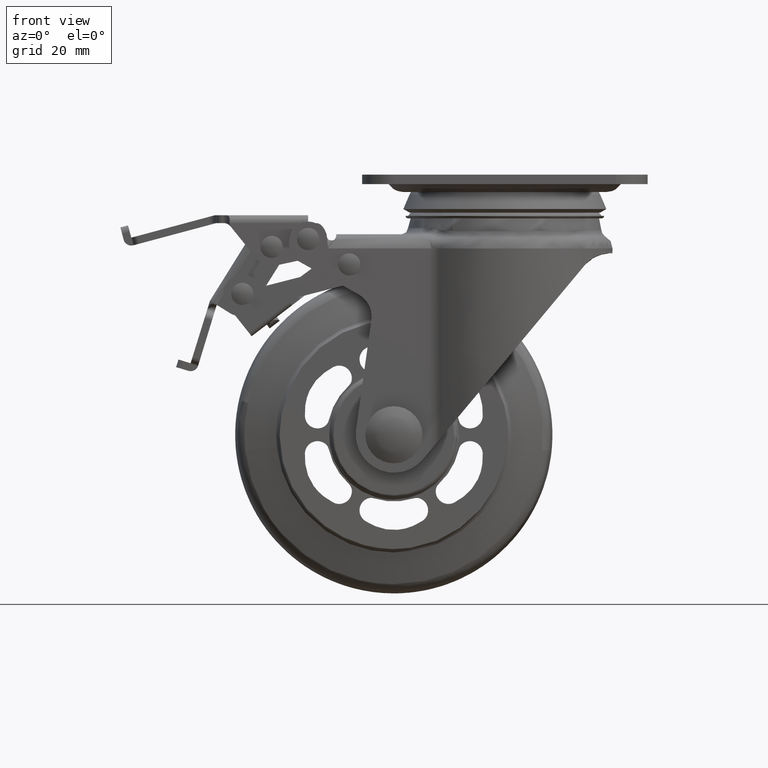
[diagram: clean part render]
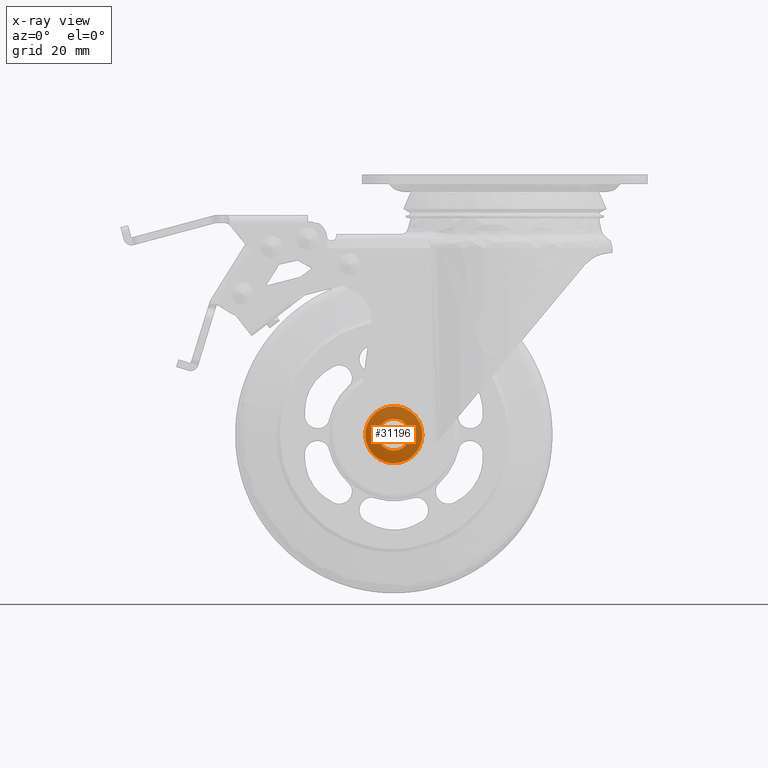
[diagram: x-ray — body ghosted, one internal face saturated and labeled with its STEP entity id]
A machine part, front view, then the same camera in x-ray: the body is ghosted and one INTERNAL B-rep face — a face not visible from any outside direction — is saturated and labeled: STEP entity #31196.
In plain terms, the highlighted face is a freeform B-spline surface patch.
Its self-contained STEP definition (entity closure, byte-faithful):
#29937=CARTESIAN_POINT('',(3.566252617747254,26.000068999999950,-3.504546805683325));
#29938=VERTEX_POINT('',#29937);
#29944=CARTESIAN_POINT('',(4.999999999999415,26.000068999999950,-0.000002419094348));
#29945=VERTEX_POINT('',#29944);
#29946=CARTESIAN_POINT('',(4.999999999999415,26.000068999999950,-0.000002419094348));
#29947=CARTESIAN_POINT('',(5.000391183001534,26.000069000000011,-0.566395325904215));
#29948=CARTESIAN_POINT('',(4.854065899436648,26.000068999999868,-1.415583915882251));
#29949=CARTESIAN_POINT('',(4.318606435535140,26.000069000000050,-2.599277063714962));
#29950=CARTESIAN_POINT('',(3.878257803720754,26.000068999999840,-3.187265200057146));
#29951=CARTESIAN_POINT('',(3.566252617747254,26.000068999999950,-3.504546805683325));
#29952=B_SPLINE_CURVE_WITH_KNOTS('',3,(#29946,#29947,#29948,#29949,#29950,#29951),.UNSPECIFIED.,.F.,.U.,(4,1,1,4),(0.000000047917434,1.698992342131286,2.548457710362805,3.883379313952198),.UNSPECIFIED.);
#29953=EDGE_CURVE('',#29945,#29938,#29952,.T.);
#29955=CARTESIAN_POINT('',(0.0,26.000068999999950,5.0));
#29956=VERTEX_POINT('',#29955);
#29957=CARTESIAN_POINT('',(0.0,26.000068999999950,5.0));
#29958=CARTESIAN_POINT('',(0.634148267408756,26.000068999999922,5.000547875681361));
#29959=CARTESIAN_POINT('',(1.574508579848454,26.000069000000028,4.818606425903411));
#29960=CARTESIAN_POINT('',(2.781619104722585,26.000068999999868,4.201453674993319));
#29961=CARTESIAN_POINT('',(3.594019983844362,26.000069000000011,3.534775408672338));
#29962=CARTESIAN_POINT('',(4.340144650709512,26.000069000000089,2.578885250231807));
#29963=CARTESIAN_POINT('',(4.866252311188554,26.000068999999812,1.411206615311700));
#29964=CARTESIAN_POINT('',(5.000177158262694,26.000069000000011,0.470431564398391));
#29965=CARTESIAN_POINT('',(4.999999999999415,26.000068999999950,-0.000002419094348));
#29966=B_SPLINE_CURVE_WITH_KNOTS('',3,(#29957,#29958,#29959,#29960,#29961,#29962,#29963,#29964,#29965),.UNSPECIFIED.,.F.,.U.,(4,1,1,1,1,1,4),(0.000000211885030,1.902148165040496,2.822571976929380,4.049722311308805,5.031461162544633,6.442767817243151,7.854032277846362),.UNSPECIFIED.);
#29967=EDGE_CURVE('',#29956,#29945,#29966,.T.);
#29969=CARTESIAN_POINT('',(-4.999999999999414,26.000068999999950,0.000002419094364));
#29970=VERTEX_POINT('',#29969);
#29971=CARTESIAN_POINT('',(-4.999999999999414,26.000068999999950,0.000002419094364));
#29972=CARTESIAN_POINT('',(-5.000260004749793,26.000068999999961,0.511361472150621));
#29973=CARTESIAN_POINT('',(-4.870170368051593,26.000068999999950,1.349757732283009));
#29974=CARTESIAN_POINT('',(-4.343926309766818,26.000068999999950,2.577648026362940));
#29975=CARTESIAN_POINT('',(-3.630396357606535,26.000068999999890,3.515529464586691));
#29976=CARTESIAN_POINT('',(-2.694481508508939,26.000068999999989,4.254995964487534));
#29977=CARTESIAN_POINT('',(-1.533684209759309,26.000068999999840,4.830487560261922));
#29978=CARTESIAN_POINT('',(-0.593226336176727,26.000069000000060,5.000507713733726));
#29979=CARTESIAN_POINT('',(0.0,26.000068999999950,5.0));
#29980=B_SPLINE_CURVE_WITH_KNOTS('',3,(#29971,#29972,#29973,#29974,#29975,#29976,#29977,#29978,#29979),.UNSPECIFIED.,.F.,.U.,(4,1,1,1,1,1,4),(0.000000212725990,1.533984008456728,2.515749299833285,3.988309510434917,5.031459413666931,6.074601990079772,7.854029550946113),.UNSPECIFIED.);
#29981=EDGE_CURVE('',#29970,#29956,#29980,.T.);
#29983=CARTESIAN_POINT('',(-3.504545959640904,26.000068999999950,-3.566251753585194));
#29984=VERTEX_POINT('',#29983);
#29985=CARTESIAN_POINT('',(-3.504545959640904,26.000068999999950,-3.566251753585194));
#29986=CARTESIAN_POINT('',(-3.799639087584681,26.000068999999950,-3.276421421043536));
#29987=CARTESIAN_POINT('',(-4.291266521632855,26.000068999999939,-2.655609435270361));
#29988=CARTESIAN_POINT('',(-4.851773679273548,26.000068999999900,-1.447467413112317));
#29989=CARTESIAN_POINT('',(-5.000295053517752,26.000068999999979,-0.537724893738789));
#29990=CARTESIAN_POINT('',(-4.999999999999414,26.000068999999950,0.000002419094364));
#29991=B_SPLINE_CURVE_WITH_KNOTS('',3,(#29985,#29986,#29987,#29988,#29989,#29990),.UNSPECIFIED.,.F.,.U.,(4,1,1,4),(0.000000053522490,1.240836431230874,2.357561422344903,3.970651611087622),.UNSPECIFIED.);
#29992=EDGE_CURVE('',#29984,#29970,#29991,.T.);
#30077=CARTESIAN_POINT('',(0.0,26.000068999999950,-5.0));
#30078=VERTEX_POINT('',#30077);
#30079=CARTESIAN_POINT('',(0.0,26.000068999999950,-5.0));
#30080=CARTESIAN_POINT('',(-0.566374569673286,26.000068999999989,-5.000403036219133));
#30081=CARTESIAN_POINT('',(-1.557190417536886,26.000068999999911,-4.829741792952528));
#30082=CARTESIAN_POINT('',(-2.722280390883607,26.000068999999989,-4.241912816889598));
#30083=CARTESIAN_POINT('',(-3.288164456086953,26.000068999999922,-3.778902242316966));
#30084=CARTESIAN_POINT('',(-3.504545959640904,26.000068999999950,-3.566251753585194));
#30085=B_SPLINE_CURVE_WITH_KNOTS('',3,(#30079,#30080,#30081,#30082,#30083,#30084),.UNSPECIFIED.,.F.,.U.,(4,1,1,4),(0.000000047903269,1.698993196117824,2.973214211319006,3.883381265708565),.UNSPECIFIED.);
#30086=EDGE_CURVE('',#30078,#29984,#30085,.T.);
#30088=CARTESIAN_POINT('',(3.566252617747254,26.000068999999950,-3.504546805683325));
#30089=CARTESIAN_POINT('',(3.189556717455753,26.000068999999929,-3.888290429959558));
#30090=CARTESIAN_POINT('',(2.479781948464435,26.000069000000011,-4.408255791226234));
#30091=CARTESIAN_POINT('',(1.240734568729230,26.000068999999829,-4.891947187928147));
#30092=CARTESIAN_POINT('',(0.454989276567774,26.000069000000138,-5.000166163003929));
#30093=CARTESIAN_POINT('',(0.0,26.000068999999950,-5.0));
#30094=B_SPLINE_CURVE_WITH_KNOTS('',3,(#30088,#30089,#30090,#30091,#30092,#30093),.UNSPECIFIED.,.F.,.U.,(4,1,1,4),(0.000000053506474,1.613089455454079,2.605728114083739,3.970649674401604),.UNSPECIFIED.);
#30095=EDGE_CURVE('',#29938,#30078,#30094,.T.);
#30337=CARTESIAN_POINT('',(6.419259449051603,26.000068999975291,-6.308188634658546));
#30338=VERTEX_POINT('',#30337);
#30339=CARTESIAN_POINT('',(9.000007999999815,26.000068999999950,0.000001839254098));
#30340=VERTEX_POINT('',#30339);
#30341=CARTESIAN_POINT('',(6.419259449051603,26.000068999975291,-6.308188634658546));
#30342=CARTESIAN_POINT('',(6.853110544842592,26.000068999977039,-5.866796593255117));
#30343=CARTESIAN_POINT('',(7.652086452425389,26.000068999980861,-4.865465417349329));
#30344=CARTESIAN_POINT('',(8.450659658823021,26.000068999987381,-3.258360925562672));
#30345=CARTESIAN_POINT('',(8.903608340074248,26.000068999993431,-1.601865521210376));
#30346=CARTESIAN_POINT('',(9.000059567531661,26.000068999998192,-0.546099445515338));
#30347=CARTESIAN_POINT('',(9.000007999999815,26.000068999999950,0.000001839254098));
#30348=B_SPLINE_CURVE_WITH_KNOTS('',3,(#30341,#30342,#30343,#30344,#30345,#30346,#30347),.UNSPECIFIED.,.F.,.U.,(4,1,1,1,4),(0.000000046051639,1.856745375056013,3.822700712282768,5.351792541006966,6.990094377953370),.UNSPECIFIED.);
#30349=EDGE_CURVE('',#30338,#30340,#30348,.T.);
#30412=CARTESIAN_POINT('',(-6.308189279701628,26.000069000024450,-6.419260104319757));
#30413=VERTEX_POINT('',#30412);
#30419=CARTESIAN_POINT('',(-9.000007999999813,26.000068999999950,-0.000001839254058));
#30420=VERTEX_POINT('',#30419);
#30421=CARTESIAN_POINT('',(-9.000007999999813,26.000068999999950,-0.000001839254058));
#30422=CARTESIAN_POINT('',(-9.000085639241252,26.000069000002380,-0.632824336660871));
#30423=CARTESIAN_POINT('',(-8.862083425169676,26.000069000007279,-1.935662705058900));
#30424=CARTESIAN_POINT('',(-8.280214404568794,26.000069000014189,-3.676387465196756));
#30425=CARTESIAN_POINT('',(-7.405744931423763,26.000069000019419,-5.199372117026133));
#30426=CARTESIAN_POINT('',(-6.706493354516019,26.000069000023359,-6.027936882233790));
#30427=CARTESIAN_POINT('',(-6.308189279701628,26.000069000024450,-6.419260104319757));
#30428=B_SPLINE_CURVE_WITH_KNOTS('',3,(#30421,#30422,#30423,#30424,#30425,#30426,#30427),.UNSPECIFIED.,.F.,.U.,(4,1,1,1,4),(0.000000051433030,1.898469725405403,3.908603024367589,5.472056634857191,7.147173870336526),.UNSPECIFIED.);
#30429=EDGE_CURVE('',#30420,#30413,#30428,.T.);
#30431=CARTESIAN_POINT('',(0.0,26.000068999999950,9.000008000000001));
#30432=VERTEX_POINT('',#30431);
#30433=CARTESIAN_POINT('',(0.0,26.000068999999950,9.000008000000001));
#30434=CARTESIAN_POINT('',(-0.589048250448366,26.000068999999890,9.000076354878342));
#30435=CARTESIAN_POINT('',(-1.656661929578646,26.000069000000039,8.894783561834618));
#30436=CARTESIAN_POINT('',(-3.469009177161690,26.000068999999851,8.381509156973591));
#30437=CARTESIAN_POINT('',(-5.139993763591960,26.000069000000011,7.488352725411549));
#30438=CARTESIAN_POINT('',(-6.470079435024936,26.000068999999989,6.311895174172615));
#30439=CARTESIAN_POINT('',(-7.382660190084307,26.000069000000011,5.199913606875008));
#30440=CARTESIAN_POINT('',(-8.053989522677156,26.000068999999979,4.095264591177880));
#30441=CARTESIAN_POINT('',(-8.774632042049515,26.000068999999581,2.355909333934370));
#30442=CARTESIAN_POINT('',(-9.000586401583396,26.000069000000661,0.957290171870042));
#30443=CARTESIAN_POINT('',(-9.000007999999813,26.000068999999950,-0.000001839254058));
#30444=B_SPLINE_CURVE_WITH_KNOTS('',3,(#30433,#30434,#30435,#30436,#30437,#30438,#30439,#30440,#30441,#30442,#30443),.UNSPECIFIED.,.F.,.U.,(4,1,1,1,1,1,1,1,4),(0.000000183655391,1.767151972102644,3.202973075995637,5.632828421134274,7.399952956099033,8.504443292581083,9.940263326305818,11.265640634133110,14.137269248975249),.UNSPECIFIED.);
#30445=EDGE_CURVE('',#30432,#30420,#30444,.T.);
#30447=CARTESIAN_POINT('',(9.000007999999815,26.000068999999950,0.000001839254098));
#30448=CARTESIAN_POINT('',(9.000041741490366,26.000068999999922,0.589040410259360));
#30449=CARTESIAN_POINT('',(8.862364300441374,26.000069000000000,1.988077875560682));
#30450=CARTESIAN_POINT('',(8.173583729914562,26.000068999999939,3.990564783056493));
#30451=CARTESIAN_POINT('',(6.989982423715862,26.000068999999939,5.785350281859706));
#30452=CARTESIAN_POINT('',(5.737300422508621,26.000068999999961,6.992617095499427));
#30453=CARTESIAN_POINT('',(4.362320265538047,26.000068999999939,7.923556509737604));
#30454=CARTESIAN_POINT('',(2.540018138001372,26.000068999999979,8.745015350537710));
#30455=CARTESIAN_POINT('',(0.957262751155944,26.000069000000021,9.000511868818625));
#30456=CARTESIAN_POINT('',(0.0,26.000068999999950,9.000008000000001));
#30457=B_SPLINE_CURVE_WITH_KNOTS('',3,(#30447,#30448,#30449,#30450,#30451,#30452,#30453,#30454,#30455,#30456),.UNSPECIFIED.,.F.,.U.,(4,1,1,1,1,1,1,4),(0.000000184294572,1.767151713210199,4.197004053857045,6.295520639739612,8.173103090520797,9.388004038465002,11.265638982507591,14.137267175694220),.UNSPECIFIED.);
#30458=EDGE_CURVE('',#30340,#30432,#30457,.T.);
#30477=CARTESIAN_POINT('',(0.0,26.000068999999950,-9.000008000000001));
#30478=VERTEX_POINT('',#30477);
#30479=CARTESIAN_POINT('',(0.0,26.000068999999950,-9.000008000000001));
#30480=CARTESIAN_POINT('',(0.632812287386418,26.000068999997531,-9.000061461181860));
#30481=CARTESIAN_POINT('',(2.047359474083625,26.000068999992070,-8.850336573741915));
#30482=CARTESIAN_POINT('',(4.311566059252545,26.000068999983419,-8.046546295555279));
#30483=CARTESIAN_POINT('',(5.741195773555663,26.000068999977810,-6.998845234775182));
#30484=CARTESIAN_POINT('',(6.419259449051603,26.000068999975291,-6.308188634658546));
#30485=B_SPLINE_CURVE_WITH_KNOTS('',3,(#30479,#30480,#30481,#30482,#30483,#30484),.UNSPECIFIED.,.F.,.U.,(4,1,1,4),(0.000000051420987,1.898470117219922,4.243624830341767,7.147175345323737),.UNSPECIFIED.);
#30486=EDGE_CURVE('',#30478,#30338,#30485,.T.);
#30488=CARTESIAN_POINT('',(-6.308189279701628,26.000069000024450,-6.419260104319757));
#30489=CARTESIAN_POINT('',(-5.918713668525721,26.000069000022972,-6.802054253185195));
#30490=CARTESIAN_POINT('',(-4.984944005077804,26.000069000019248,-7.565904743190959));
#30491=CARTESIAN_POINT('',(-3.397720626053596,26.000069000013241,-8.403307559619607));
#30492=CARTESIAN_POINT('',(-1.674694676980687,26.000069000006281,-8.896983770065935));
#30493=CARTESIAN_POINT('',(-0.546098367192599,26.000069000002359,-9.000058365911114));
#30494=CARTESIAN_POINT('',(0.0,26.000068999999950,-9.000008000000001));
#30495=B_SPLINE_CURVE_WITH_KNOTS('',3,(#30488,#30489,#30490,#30491,#30492,#30493,#30494),.UNSPECIFIED.,.F.,.U.,(4,1,1,1,4),(0.000000046040637,1.638301535782348,3.604239302816852,5.351791406817089,6.990092896531079),.UNSPECIFIED.);
#30496=EDGE_CURVE('',#30413,#30478,#30495,.T.);
#31175=CARTESIAN_POINT('',(-9.899108362061023,26.000068999999950,-9.899108362061231));
#31176=CARTESIAN_POINT('',(9.899107879262976,26.000068999999950,-9.899108362061231));
#31177=CARTESIAN_POINT('',(-9.899108362061023,26.000068999999950,9.899107879263180));
#31178=CARTESIAN_POINT('',(9.899107879262976,26.000068999999950,9.899107879263180));
#31179=B_SPLINE_SURFACE_WITH_KNOTS('',1,1,((#31175,#31177),(#31176,#31178)),.UNSPECIFIED.,.F.,.F.,.U.,(2,2),(2,2),(0.0,19.798216241323999),(0.0,19.798216241324411),.UNSPECIFIED.);
#31180=ORIENTED_EDGE('',*,*,#30486,.T.);
#31181=ORIENTED_EDGE('',*,*,#30349,.T.);
#31182=ORIENTED_EDGE('',*,*,#30458,.T.);
#31183=ORIENTED_EDGE('',*,*,#30445,.T.);
#31184=ORIENTED_EDGE('',*,*,#30429,.T.);
#31185=ORIENTED_EDGE('',*,*,#30496,.T.);
#31186=EDGE_LOOP('',(#31180,#31181,#31182,#31183,#31184,#31185));
#31187=FACE_OUTER_BOUND('',#31186,.T.);
#31188=ORIENTED_EDGE('',*,*,#29981,.T.);
#31189=ORIENTED_EDGE('',*,*,#29967,.T.);
#31190=ORIENTED_EDGE('',*,*,#29953,.T.);
#31191=ORIENTED_EDGE('',*,*,#30095,.T.);
#31192=ORIENTED_EDGE('',*,*,#30086,.T.);
#31193=ORIENTED_EDGE('',*,*,#29992,.T.);
#31194=EDGE_LOOP('',(#31188,#31189,#31190,#31191,#31192,#31193));
#31195=FACE_BOUND('',#31194,.T.);
#31196=ADVANCED_FACE('',(#31187,#31195),#31179,.T.);